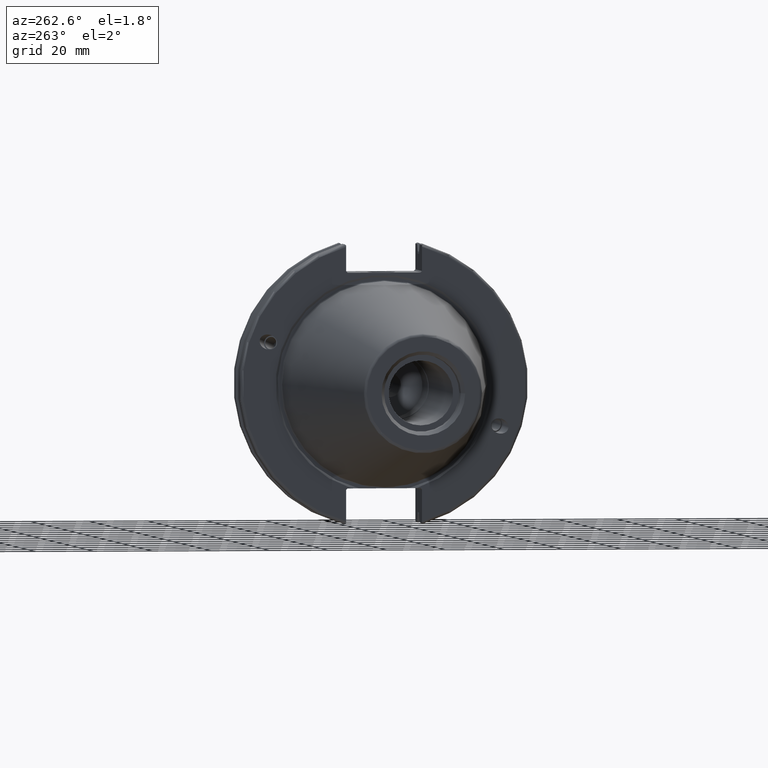
[diagram: clean part render]
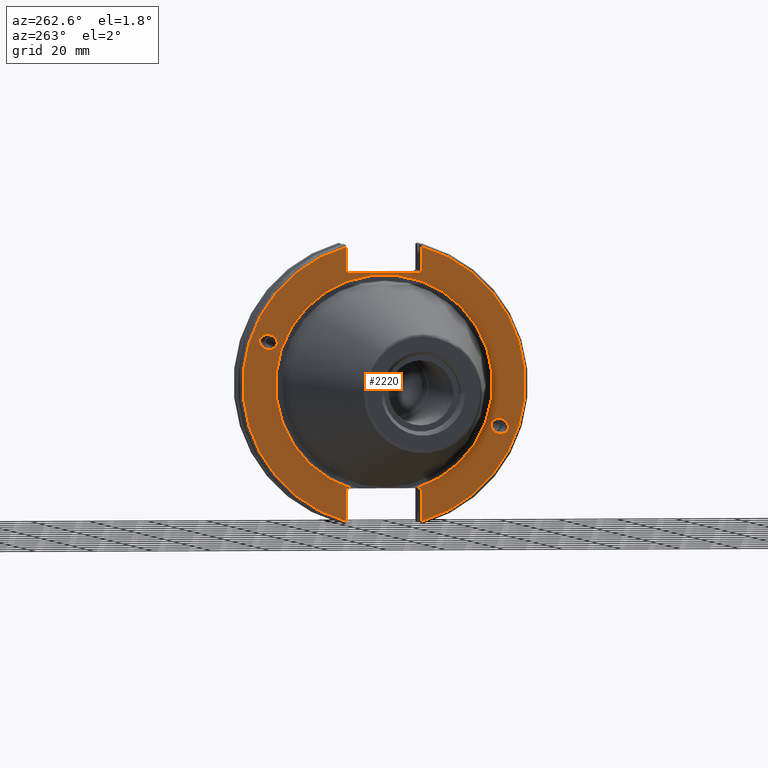
[diagram: same view with one face highlighted and labeled with its STEP entity id]
A machine part, auxiliary view. The second image highlights one B-rep face of the part: STEP entity #2220.
In plain terms, the highlighted planar face has unit normal (-1, 0, 0).
Its self-contained STEP definition (entity closure, byte-faithful):
#33=ELLIPSE('',#2435,3.05193647190365,2.50000000000001);
#34=ELLIPSE('',#2474,3.05193647190365,2.50000000000001);
#87=FACE_BOUND('',#592,.T.);
#88=FACE_BOUND('',#593,.T.);
#111=PLANE('',#2503);
#211=LINE('',#4168,#317);
#214=LINE('',#4218,#320);
#222=LINE('',#4254,#328);
#226=LINE('',#4322,#332);
#227=LINE('',#4324,#333);
#228=LINE('',#4326,#334);
#229=LINE('',#4327,#335);
#230=LINE('',#4329,#336);
#231=LINE('',#4331,#337);
#232=LINE('',#4335,#338);
#233=LINE('',#4336,#339);
#317=VECTOR('',#3061,10.);
#320=VECTOR('',#3070,10.);
#328=VECTOR('',#3080,10.);
#332=VECTOR('',#3106,10.);
#333=VECTOR('',#3107,10.);
#334=VECTOR('',#3108,10.);
#335=VECTOR('',#3109,10.);
#336=VECTOR('',#3110,10.);
#337=VECTOR('',#3111,10.);
#338=VECTOR('',#3114,10.);
#339=VECTOR('',#3115,10.);
#469=FACE_OUTER_BOUND('',#591,.T.);
#591=EDGE_LOOP('',(#1926,#1927,#1928,#1929,#1930,#1931,#1932,#1933,#1934,
#1935,#1936,#1937,#1938,#1939));
#592=EDGE_LOOP('',(#1940));
#593=EDGE_LOOP('',(#1941));
#781=CIRCLE('',#2495,48.2125);
#784=CIRCLE('',#2502,48.2125);
#785=CIRCLE('',#2504,37.);
#951=VERTEX_POINT('',#3827);
#994=VERTEX_POINT('',#4099);
#1007=VERTEX_POINT('',#4165);
#1008=VERTEX_POINT('',#4167);
#1014=VERTEX_POINT('',#4215);
#1015=VERTEX_POINT('',#4217);
#1023=VERTEX_POINT('',#4246);
#1024=VERTEX_POINT('',#4253);
#1032=VERTEX_POINT('',#4312);
#1033=VERTEX_POINT('',#4321);
#1034=VERTEX_POINT('',#4323);
#1035=VERTEX_POINT('',#4325);
#1036=VERTEX_POINT('',#4328);
#1037=VERTEX_POINT('',#4330);
#1038=VERTEX_POINT('',#4332);
#1039=VERTEX_POINT('',#4334);
#1239=EDGE_CURVE('',#951,#951,#33,.T.);
#1296=EDGE_CURVE('',#994,#994,#34,.T.);
#1316=EDGE_CURVE('',#1008,#1007,#211,.T.);
#1326=EDGE_CURVE('',#1015,#1014,#214,.T.);
#1338=EDGE_CURVE('',#1024,#1023,#222,.T.);
#1343=EDGE_CURVE('',#1015,#1023,#781,.T.);
#1352=EDGE_CURVE('',#1008,#1032,#784,.T.);
#1354=EDGE_CURVE('',#1033,#1014,#226,.T.);
#1355=EDGE_CURVE('',#1033,#1034,#227,.T.);
#1356=EDGE_CURVE('',#1035,#1034,#228,.T.);
#1357=EDGE_CURVE('',#1035,#1032,#229,.T.);
#1358=EDGE_CURVE('',#1036,#1007,#230,.T.);
#1359=EDGE_CURVE('',#1036,#1037,#231,.T.);
#1360=EDGE_CURVE('',#1037,#1038,#785,.T.);
#1361=EDGE_CURVE('',#1038,#1039,#232,.T.);
#1362=EDGE_CURVE('',#1024,#1039,#233,.T.);
#1926=ORIENTED_EDGE('',*,*,#1343,.F.);
#1927=ORIENTED_EDGE('',*,*,#1326,.T.);
#1928=ORIENTED_EDGE('',*,*,#1354,.F.);
#1929=ORIENTED_EDGE('',*,*,#1355,.T.);
#1930=ORIENTED_EDGE('',*,*,#1356,.F.);
#1931=ORIENTED_EDGE('',*,*,#1357,.T.);
#1932=ORIENTED_EDGE('',*,*,#1352,.F.);
#1933=ORIENTED_EDGE('',*,*,#1316,.T.);
#1934=ORIENTED_EDGE('',*,*,#1358,.F.);
#1935=ORIENTED_EDGE('',*,*,#1359,.T.);
#1936=ORIENTED_EDGE('',*,*,#1360,.T.);
#1937=ORIENTED_EDGE('',*,*,#1361,.T.);
#1938=ORIENTED_EDGE('',*,*,#1362,.F.);
#1939=ORIENTED_EDGE('',*,*,#1338,.T.);
#1940=ORIENTED_EDGE('',*,*,#1239,.T.);
#1941=ORIENTED_EDGE('',*,*,#1296,.T.);
#2220=ADVANCED_FACE('',(#469,#87,#88),#111,.T.);
#2435=AXIS2_PLACEMENT_3D('',#3829,#2930,#2931);
#2474=AXIS2_PLACEMENT_3D('',#4101,#3024,#3025);
#2495=AXIS2_PLACEMENT_3D('',#4276,#3086,#3087);
#2502=AXIS2_PLACEMENT_3D('',#4313,#3102,#3103);
#2503=AXIS2_PLACEMENT_3D('',#4320,#3104,#3105);
#2504=AXIS2_PLACEMENT_3D('',#4333,#3112,#3113);
#2930=DIRECTION('center_axis',(1.,0.,0.));
#2931=DIRECTION('ref_axis',(0.,-0.939692620785909,-0.342020143325667));
#3024=DIRECTION('center_axis',(1.,0.,0.));
#3025=DIRECTION('ref_axis',(0.,0.939692620785909,0.342020143325667));
#3061=DIRECTION('',(0.,0.,1.));
#3070=DIRECTION('',(0.,0.,-1.));
#3080=DIRECTION('',(0.,0.,-1.));
#3086=DIRECTION('center_axis',(1.,0.,0.));
#3087=DIRECTION('ref_axis',(0.,-1.,1.60812264967664E-16));
#3102=DIRECTION('center_axis',(1.,0.,0.));
#3103=DIRECTION('ref_axis',(0.,1.,-6.12323399573677E-17));
#3104=DIRECTION('center_axis',(-1.,0.,0.));
#3105=DIRECTION('ref_axis',(0.,0.,1.));
#3106=DIRECTION('',(0.,-0.707106781186549,0.707106781186546));
#3107=DIRECTION('',(0.,1.,0.));
#3108=DIRECTION('',(0.,-0.707106781186549,-0.707106781186546));
#3109=DIRECTION('',(0.,0.,1.));
#3110=DIRECTION('',(0.,0.707106781186548,-0.707106781186548));
#3111=DIRECTION('',(0.,-1.,0.));
#3112=DIRECTION('center_axis',(1.,0.,0.));
#3113=DIRECTION('ref_axis',(0.,0.,-1.));
#3114=DIRECTION('',(0.,-1.,0.));
#3115=DIRECTION('',(0.,0.707106781186549,0.707106781186546));
#3827=CARTESIAN_POINT('',(1.5,-36.5992078912529,-13.3210222701368));
#3829=CARTESIAN_POINT('Origin',(1.5,-39.4670900730082,-14.3648460196781));
#4099=CARTESIAN_POINT('',(1.5,36.5992078912529,13.3210222701368));
#4101=CARTESIAN_POINT('Origin',(1.5,39.4670900730082,14.3648460196781));
#4165=CARTESIAN_POINT('',(1.5,12.95,-35.806));
#4167=CARTESIAN_POINT('',(1.5,12.95,-46.4407434937254));
#4168=CARTESIAN_POINT('',(1.5,12.95,-17.653));
#4215=CARTESIAN_POINT('',(1.5,-12.95,38.219));
#4217=CARTESIAN_POINT('',(1.5,-12.95,46.4407434937254));
#4218=CARTESIAN_POINT('',(1.5,-12.95,18.8595));
#4246=CARTESIAN_POINT('',(1.5,-12.95,-46.4407434937254));
#4253=CARTESIAN_POINT('',(1.5,-12.95,-35.806));
#4254=CARTESIAN_POINT('',(1.5,-12.95,-17.653));
#4276=CARTESIAN_POINT('Origin',(1.5,0.,0.));
#4312=CARTESIAN_POINT('',(1.5,12.95,46.4407434937254));
#4313=CARTESIAN_POINT('Origin',(1.5,0.,0.));
#4320=CARTESIAN_POINT('Origin',(1.5,49.2125,0.));
#4321=CARTESIAN_POINT('',(1.5,-12.45,37.719));
#4322=CARTESIAN_POINT('',(1.5,12.2703750000001,12.998625));
#4323=CARTESIAN_POINT('',(1.5,12.45,37.719));
#4324=CARTESIAN_POINT('',(1.5,24.60625,37.719));
#4325=CARTESIAN_POINT('',(1.5,12.95,38.219));
#4326=CARTESIAN_POINT('',(1.5,12.335875,37.604875));
#4327=CARTESIAN_POINT('',(1.5,12.95,18.8595));
#4328=CARTESIAN_POINT('',(1.5,12.45,-35.306));
#4329=CARTESIAN_POINT('',(1.5,12.939125,-35.795125));
#4330=CARTESIAN_POINT('',(1.49999999999999,11.0673557817575,-35.306));
#4331=CARTESIAN_POINT('',(1.5,24.60625,-35.306));
#4332=CARTESIAN_POINT('',(1.5,-11.0673557817575,-35.306));
#4333=CARTESIAN_POINT('Origin',(1.5,0.,0.));
#4334=CARTESIAN_POINT('',(1.5,-12.45,-35.306));
#4335=CARTESIAN_POINT('',(1.5,24.60625,-35.306));
#4336=CARTESIAN_POINT('',(1.5,11.6671250000001,-11.188875));